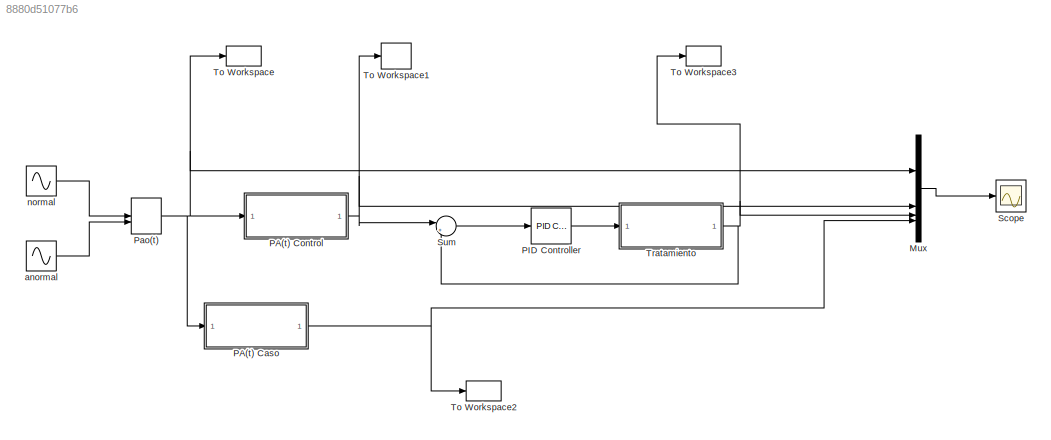
MODEL slx_8880d51077b6
KIND model
CONFIG AbsTol = auto
CONFIG EnableMultiTasking = off
CONFIG FixedStep = auto
CONFIG MaxStep = 1E-3
CONFIG MinStep = auto
CONFIG RelTol = 1e-3
CONFIG SampleTimeConstraint = Unconstrained
CONFIG SolverName = ode15s
CONFIG StartTime = 0.0
CONFIG StopTime = 30
BLOCK [Mux] Mux
  DisplayOption = bar
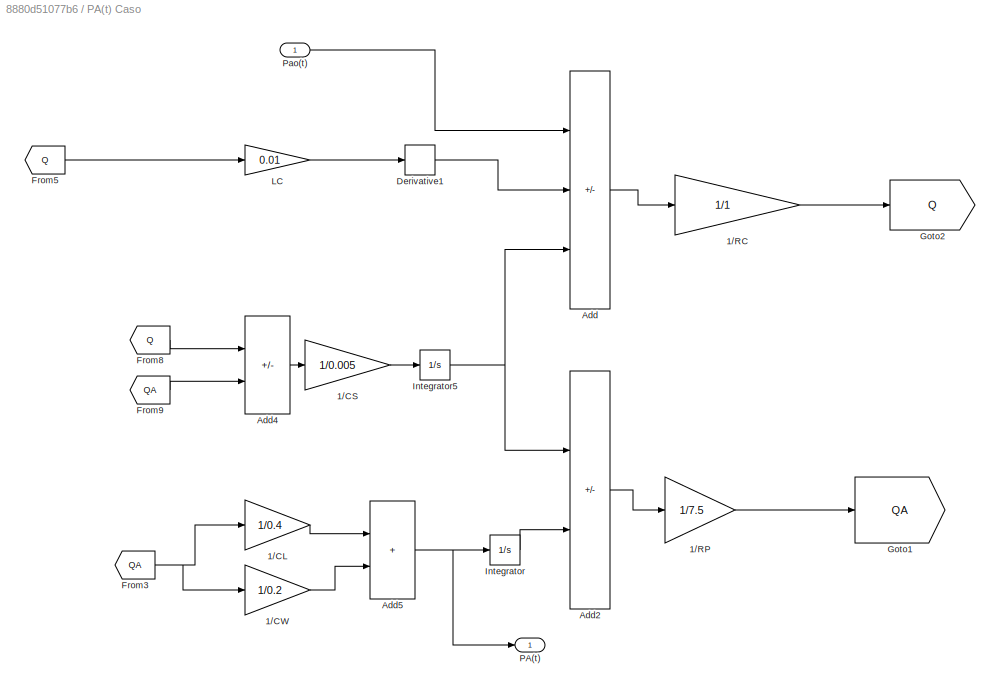
BLOCK [SubSystem] PA(t) Caso
BLOCK [Gain] PA(t) Caso/1//CL
  Gain = 1/0.4
BLOCK [Gain] PA(t) Caso/1//CS
  Gain = 1/0.005
BLOCK [Gain] PA(t) Caso/1//CW
  Gain = 1/0.2
BLOCK [Gain] PA(t) Caso/1//RC
  Gain = 1/1
BLOCK [Gain] PA(t) Caso/1//RP
  Gain = 1/7.5
BLOCK [Sum] PA(t) Caso/Add
  IconShape = rectangular
  Inputs = +--
BLOCK [Sum] PA(t) Caso/Add2
  IconShape = rectangular
  Inputs = +-
BLOCK [Sum] PA(t) Caso/Add4
  IconShape = rectangular
  Inputs = +-
BLOCK [Sum] PA(t) Caso/Add5
  IconShape = rectangular
BLOCK [Derivative] PA(t) Caso/Derivative1
BLOCK [From] PA(t) Caso/From3
  GotoTag = QA
BLOCK [From] PA(t) Caso/From5
  GotoTag = Q
BLOCK [From] PA(t) Caso/From8
  GotoTag = Q
BLOCK [From] PA(t) Caso/From9
  GotoTag = QA
BLOCK [Goto] PA(t) Caso/Goto1
  GotoTag = QA
BLOCK [Goto] PA(t) Caso/Goto2
  GotoTag = Q
BLOCK [Integrator] PA(t) Caso/Integrator
BLOCK [Integrator] PA(t) Caso/Integrator5
BLOCK [Gain] PA(t) Caso/LC 
  Gain = 0.01
BLOCK [Outport] PA(t) Caso/PA(t)
BLOCK [Inport] PA(t) Caso/Pao(t)
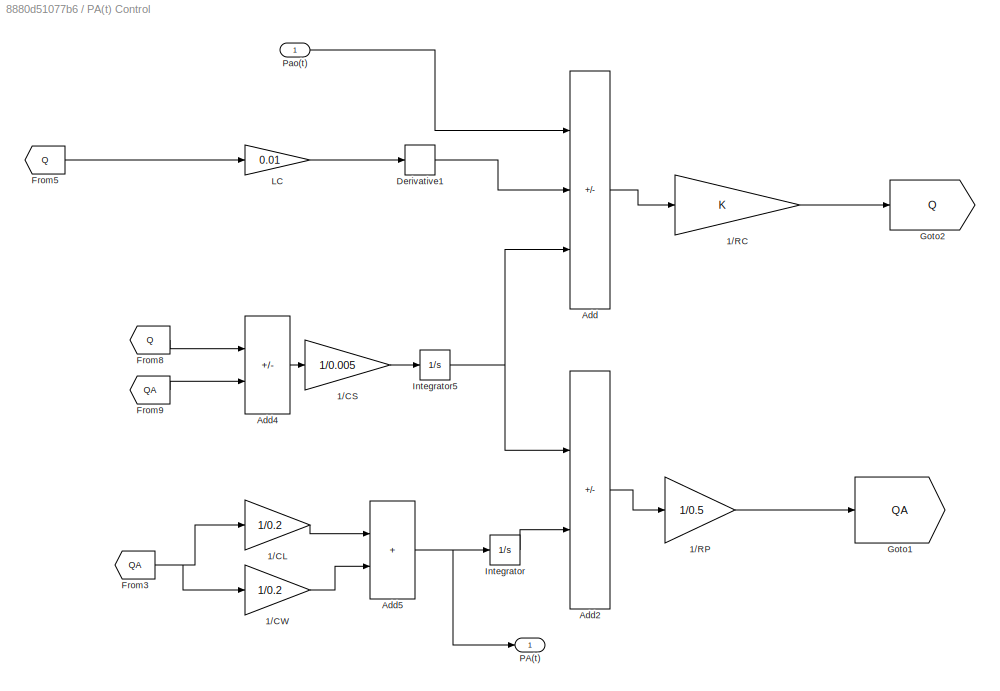
BLOCK [SubSystem] PA(t) Control
BLOCK [Gain] PA(t) Control/1//CL
  Gain = 1/0.2
BLOCK [Gain] PA(t) Control/1//CS
  Gain = 1/0.005
BLOCK [Gain] PA(t) Control/1//CW
  Gain = 1/0.2
BLOCK [Gain] PA(t) Control/1//RC
BLOCK [Gain] PA(t) Control/1//RP
  Gain = 1/0.5
BLOCK [Sum] PA(t) Control/Add
  IconShape = rectangular
  Inputs = +--
BLOCK [Sum] PA(t) Control/Add2
  IconShape = rectangular
  Inputs = +-
BLOCK [Sum] PA(t) Control/Add4
  IconShape = rectangular
  Inputs = +-
BLOCK [Sum] PA(t) Control/Add5
  IconShape = rectangular
BLOCK [Derivative] PA(t) Control/Derivative1
BLOCK [From] PA(t) Control/From3
  GotoTag = QA
BLOCK [From] PA(t) Control/From5
  GotoTag = Q
BLOCK [From] PA(t) Control/From8
  GotoTag = Q
BLOCK [From] PA(t) Control/From9
  GotoTag = QA
BLOCK [Goto] PA(t) Control/Goto1
  GotoTag = QA
BLOCK [Goto] PA(t) Control/Goto2
  GotoTag = Q
BLOCK [Integrator] PA(t) Control/Integrator
BLOCK [Integrator] PA(t) Control/Integrator5
BLOCK [Gain] PA(t) Control/LC 
  Gain = 0.01
BLOCK [Outport] PA(t) Control/PA(t)
BLOCK [Inport] PA(t) Control/Pao(t)
BLOCK [Reference] PID Controller  REF=slpidlib/PID Controller
  LibrarySourceBlock = simulink/Continuous/PID Controller
  SourceBlock = slpidlib/PID Controller
  SourceType = PID 1dof
BLOCK [ManualSwitch] Pao(t)
  CurrentSetting = 0
BLOCK [Scope] Scope
  Floating = off
  NumInputPorts = 1
  ScopeSpecificationString = Simulink.scopes.TimeScopeBlockCfg('CurrentConfiguration', extmgr.ConfigurationSet(extmgr.Configuration('Core','General UI',true),extmgr.Configuration('Core','Source UI',true),extmgr.Configuration('Sources','WiredSimulink',true),extmgr.Configuration('Visuals','Time Domain',true,'SerializedDisplays',{struct('MinYLimReal','-2.87006','MaxYLimReal','2.87001','YLabelReal','','MinYLimMag','0.00000','MaxY...<+1770ch>
BLOCK [Sum] Sum
  Inputs = |+-
BLOCK [ToWorkspace] To Workspace
  FixptAsFi = on
  MaxDataPoints = inf
  SampleTime = -1
  VariableName = Pao
BLOCK [ToWorkspace] To Workspace1
  FixptAsFi = on
  MaxDataPoints = inf
  SampleTime = -1
  VariableName = PAx
BLOCK [ToWorkspace] To Workspace2
  FixptAsFi = on
  MaxDataPoints = inf
  SampleTime = -1
  VariableName = PAy
BLOCK [ToWorkspace] To Workspace3
  FixptAsFi = on
  MaxDataPoints = inf
  SampleTime = -1
  VariableName = PAz
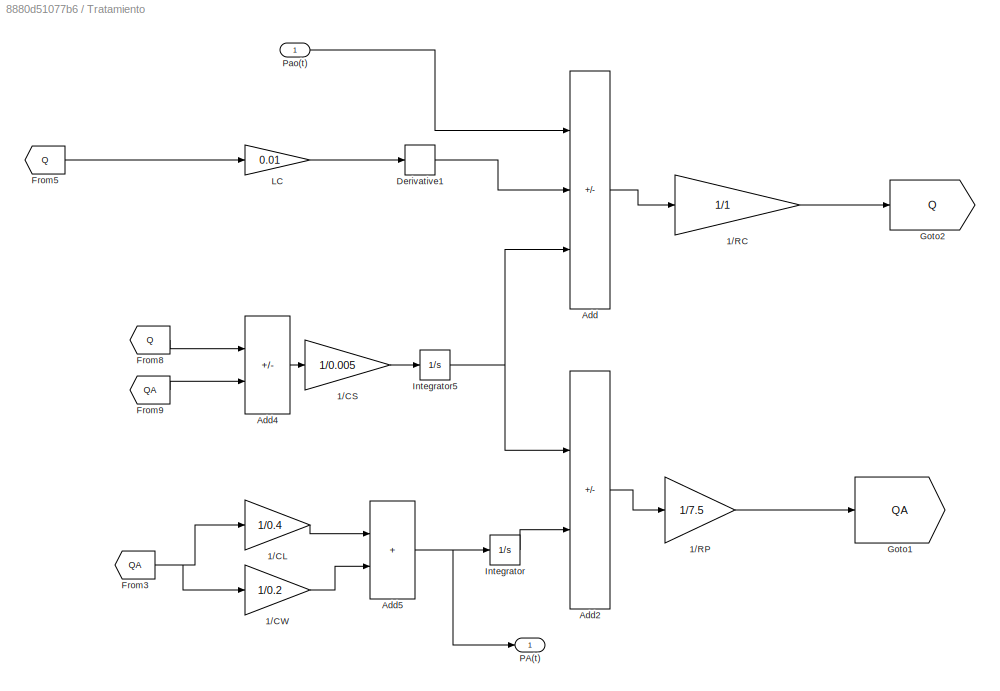
BLOCK [SubSystem] Tratamiento
BLOCK [Gain] Tratamiento/1//CL
  Gain = 1/0.4
BLOCK [Gain] Tratamiento/1//CS
  Gain = 1/0.005
BLOCK [Gain] Tratamiento/1//CW
  Gain = 1/0.2
BLOCK [Gain] Tratamiento/1//RC
  Gain = 1/1
BLOCK [Gain] Tratamiento/1//RP
  Gain = 1/7.5
BLOCK [Sum] Tratamiento/Add
  IconShape = rectangular
  Inputs = +--
BLOCK [Sum] Tratamiento/Add2
  IconShape = rectangular
  Inputs = +-
BLOCK [Sum] Tratamiento/Add4
  IconShape = rectangular
  Inputs = +-
BLOCK [Sum] Tratamiento/Add5
  IconShape = rectangular
BLOCK [Derivative] Tratamiento/Derivative1
BLOCK [From] Tratamiento/From3
  GotoTag = QA
BLOCK [From] Tratamiento/From5
  GotoTag = Q
BLOCK [From] Tratamiento/From8
  GotoTag = Q
BLOCK [From] Tratamiento/From9
  GotoTag = QA
BLOCK [Goto] Tratamiento/Goto1
  GotoTag = QA
BLOCK [Goto] Tratamiento/Goto2
  GotoTag = Q
BLOCK [Integrator] Tratamiento/Integrator
BLOCK [Integrator] Tratamiento/Integrator5
BLOCK [Gain] Tratamiento/LC 
  Gain = 0.01
BLOCK [Outport] Tratamiento/PA(t)
BLOCK [Inport] Tratamiento/Pao(t)
BLOCK [Sin] anormal
  Amplitude = 1.5
  Frequency = pi/2
  SampleTime = 0
BLOCK [Sin] normal
  Amplitude = 2.5
  Frequency = pi
  SampleTime = 0
LINE Mux:1 -> Scope:1
LINE PA(t) Caso/1//CL:1 -> PA(t) Caso/Add5:1
LINE PA(t) Caso/1//CS:1 -> PA(t) Caso/Integrator5:1
LINE PA(t) Caso/1//CW:1 -> PA(t) Caso/Add5:2
LINE PA(t) Caso/1//RC:1 -> PA(t) Caso/Goto2:1
LINE PA(t) Caso/1//RP:1 -> PA(t) Caso/Goto1:1
LINE PA(t) Caso/Add2:1 -> PA(t) Caso/1//RP:1
LINE PA(t) Caso/Add4:1 -> PA(t) Caso/1//CS:1
NET PA(t) Caso/Add5:1 -> PA(t) Caso/Integrator:1, PA(t) Caso/PA(t):1
LINE PA(t) Caso/Add:1 -> PA(t) Caso/1//RC:1
LINE PA(t) Caso/Derivative1:1 -> PA(t) Caso/Add:2
NET PA(t) Caso/From3:1 -> PA(t) Caso/1//CL:1, PA(t) Caso/1//CW:1
LINE PA(t) Caso/From5:1 -> PA(t) Caso/LC :1
LINE PA(t) Caso/From8:1 -> PA(t) Caso/Add4:1
LINE PA(t) Caso/From9:1 -> PA(t) Caso/Add4:2
NET PA(t) Caso/Integrator5:1 -> PA(t) Caso/Add2:1, PA(t) Caso/Add:3
LINE PA(t) Caso/Integrator:1 -> PA(t) Caso/Add2:2
LINE PA(t) Caso/LC :1 -> PA(t) Caso/Derivative1:1
LINE PA(t) Caso/Pao(t):1 -> PA(t) Caso/Add:1
NET PA(t) Caso:1 -> Mux:4, To Workspace2:1
LINE PA(t) Control/1//CL:1 -> PA(t) Control/Add5:1
LINE PA(t) Control/1//CS:1 -> PA(t) Control/Integrator5:1
LINE PA(t) Control/1//CW:1 -> PA(t) Control/Add5:2
LINE PA(t) Control/1//RC:1 -> PA(t) Control/Goto2:1
LINE PA(t) Control/1//RP:1 -> PA(t) Control/Goto1:1
LINE PA(t) Control/Add2:1 -> PA(t) Control/1//RP:1
LINE PA(t) Control/Add4:1 -> PA(t) Control/1//CS:1
NET PA(t) Control/Add5:1 -> PA(t) Control/Integrator:1, PA(t) Control/PA(t):1
LINE PA(t) Control/Add:1 -> PA(t) Control/1//RC:1
LINE PA(t) Control/Derivative1:1 -> PA(t) Control/Add:2
NET PA(t) Control/From3:1 -> PA(t) Control/1//CL:1, PA(t) Control/1//CW:1
LINE PA(t) Control/From5:1 -> PA(t) Control/LC :1
LINE PA(t) Control/From8:1 -> PA(t) Control/Add4:1
LINE PA(t) Control/From9:1 -> PA(t) Control/Add4:2
NET PA(t) Control/Integrator5:1 -> PA(t) Control/Add2:1, PA(t) Control/Add:3
LINE PA(t) Control/Integrator:1 -> PA(t) Control/Add2:2
LINE PA(t) Control/LC :1 -> PA(t) Control/Derivative1:1
LINE PA(t) Control/Pao(t):1 -> PA(t) Control/Add:1
NET PA(t) Control:1 -> Mux:2, Sum:1, To Workspace1:1
LINE PID Controller:1 -> Tratamiento:1
NET Pao(t):1 -> Mux:1, PA(t) Caso:1, PA(t) Control:1, To Workspace:1
LINE Sum:1 -> PID Controller:1
LINE Tratamiento/1//CL:1 -> Tratamiento/Add5:1
LINE Tratamiento/1//CS:1 -> Tratamiento/Integrator5:1
LINE Tratamiento/1//CW:1 -> Tratamiento/Add5:2
LINE Tratamiento/1//RC:1 -> Tratamiento/Goto2:1
LINE Tratamiento/1//RP:1 -> Tratamiento/Goto1:1
LINE Tratamiento/Add2:1 -> Tratamiento/1//RP:1
LINE Tratamiento/Add4:1 -> Tratamiento/1//CS:1
NET Tratamiento/Add5:1 -> Tratamiento/Integrator:1, Tratamiento/PA(t):1
LINE Tratamiento/Add:1 -> Tratamiento/1//RC:1
LINE Tratamiento/Derivative1:1 -> Tratamiento/Add:2
NET Tratamiento/From3:1 -> Tratamiento/1//CL:1, Tratamiento/1//CW:1
LINE Tratamiento/From5:1 -> Tratamiento/LC :1
LINE Tratamiento/From8:1 -> Tratamiento/Add4:1
LINE Tratamiento/From9:1 -> Tratamiento/Add4:2
NET Tratamiento/Integrator5:1 -> Tratamiento/Add2:1, Tratamiento/Add:3
LINE Tratamiento/Integrator:1 -> Tratamiento/Add2:2
LINE Tratamiento/LC :1 -> Tratamiento/Derivative1:1
LINE Tratamiento/Pao(t):1 -> Tratamiento/Add:1
NET Tratamiento:1 -> Mux:3, Sum:2, To Workspace3:1
LINE anormal:1 -> Pao(t):2
LINE normal:1 -> Pao(t):1
note: NET lines group one-source signal fan-out (src -> all destinations, sorted); 1:1 wires keep LINE
